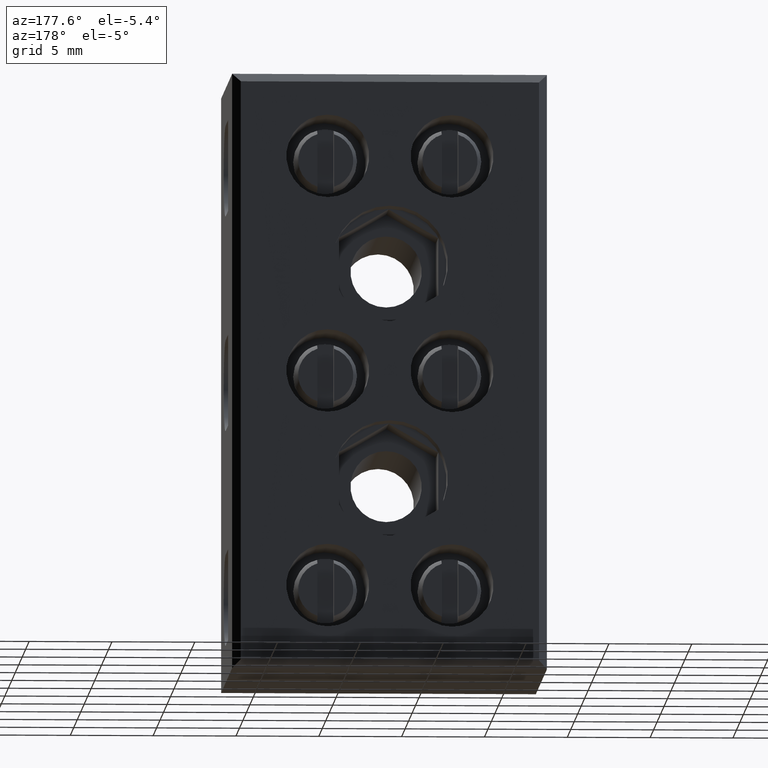
[diagram: clean part render]
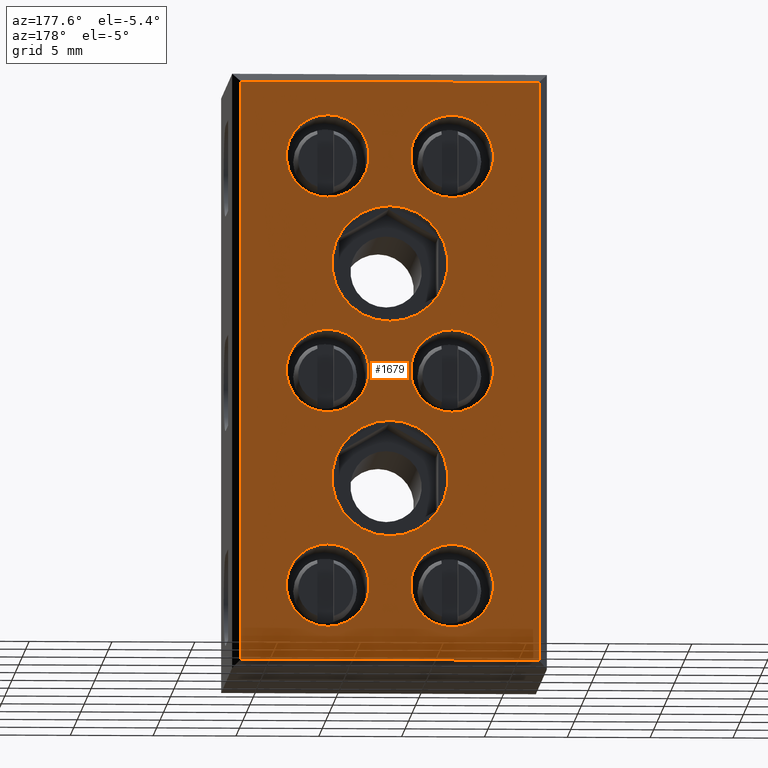
[diagram: same view with one face highlighted and labeled with its STEP entity id]
A machine part, auxiliary view. The second image highlights one B-rep face of the part: STEP entity #1679.
In plain terms, the highlighted planar face has unit normal (0, 1, 0).
Its self-contained STEP definition (entity closure, byte-faithful):
#289 = DIRECTION ( 'NONE',  ( 0.0000000000000000000, 0.0000000000000000000, 1.000000000000000000 ) ) ;
#307 = DIRECTION ( 'NONE',  ( 0.0000000000000000000, 0.0000000000000000000, 1.000000000000000000 ) ) ;
#311 = DIRECTION ( 'NONE',  ( -0.0000000000000000000, -1.000000000000000000, -0.0000000000000000000 ) ) ;
#327 = CARTESIAN_POINT ( 'NONE',  ( 6491.007784387872600, 17.00000000000000000, -18.00342649165530800 ) ) ;
#328 = CARTESIAN_POINT ( 'NONE',  ( 6487.257784387872600, 17.00000000000000000, -11.50342649165530100 ) ) ;
#329 = DIRECTION ( 'NONE',  ( -0.0000000000000000000, -1.000000000000000000, -0.0000000000000000000 ) ) ;
#340 = CARTESIAN_POINT ( 'NONE',  ( 6496.257784387882600, 16.99999999999989000, -36.25342650685088600 ) ) ;
#345 = LINE ( 'NONE', #340, #5625 ) ;
#365 = DIRECTION ( 'NONE',  ( -2.960884390070937000E-013, -2.960884390073395200E-013, 1.000000000000000000 ) ) ;
#379 = CARTESIAN_POINT ( 'NONE',  ( 6491.007784387872600, 17.00000000000000000, -5.003426491655305100 ) ) ;
#387 = DIRECTION ( 'NONE',  ( -0.0000000000000000000, -0.0000000000000000000, -1.000000000000000000 ) ) ;
#394 = DIRECTION ( 'NONE',  ( 0.0000000000000000000, 0.0000000000000000000, 1.000000000000000000 ) ) ;
#395 = DIRECTION ( 'NONE',  ( 0.0000000000000000000, 0.0000000000000000000, 1.000000000000000000 ) ) ;
#401 = DIRECTION ( 'NONE',  ( -0.0000000000000000000, -1.000000000000000000, -0.0000000000000000000 ) ) ;
#404 = CARTESIAN_POINT ( 'NONE',  ( 6483.507784387872600, 17.00000000000000000, -5.003426491655305100 ) ) ;
#407 = DIRECTION ( 'NONE',  ( -0.0000000000000000000, -1.000000000000000000, -0.0000000000000000000 ) ) ;
#408 = CARTESIAN_POINT ( 'NONE',  ( 6483.507784387872600, 17.00000000000000000, -18.00342649165530800 ) ) ;
#412 = DIRECTION ( 'NONE',  ( -0.0000000000000000000, -1.000000000000000000, -0.0000000000000000000 ) ) ;
#413 = LINE ( 'NONE', #415, #5601 ) ;
#414 = DIRECTION ( 'NONE',  ( 0.0000000000000000000, 0.0000000000000000000, 1.000000000000000000 ) ) ;
#415 = CARTESIAN_POINT ( 'NONE',  ( 6478.257784387862600, 17.00000000000000000, -36.25342650685148300 ) ) ;
#423 = DIRECTION ( 'NONE',  ( 0.0000000000000000000, 0.0000000000000000000, 1.000000000000000000 ) ) ;
#429 = DIRECTION ( 'NONE',  ( -0.0000000000000000000, -1.000000000000000000, -0.0000000000000000000 ) ) ;
#431 = DIRECTION ( 'NONE',  ( 0.0000000000000000000, 0.0000000000000000000, 1.000000000000000000 ) ) ;
#434 = DIRECTION ( 'NONE',  ( -0.0000000000000000000, -1.000000000000000000, -0.0000000000000000000 ) ) ;
#435 = LINE ( 'NONE', #456, #5641 ) ;
#436 = DIRECTION ( 'NONE',  ( 1.000000000000000000, -0.0000000000000000000, 0.0000000000000000000 ) ) ;
#439 = CARTESIAN_POINT ( 'NONE',  ( 6495.254189631172300, 17.00000000000000000, -0.5034264916452535500 ) ) ;
#440 = CARTESIAN_POINT ( 'NONE',  ( 6487.257784387872600, 17.00000000000000000, -24.50342649165530100 ) ) ;
#441 = CARTESIAN_POINT ( 'NONE',  ( 6483.507784387872600, 17.00000000000000000, -31.00342649165530100 ) ) ;
#442 = DIRECTION ( 'NONE',  ( 0.0000000000000000000, 0.0000000000000000000, 1.000000000000000000 ) ) ;
#443 = CARTESIAN_POINT ( 'NONE',  ( 6491.007784387872600, 17.00000000000000000, -31.00342649165530100 ) ) ;
#446 = LINE ( 'NONE', #439, #5631 ) ;
#453 = DIRECTION ( 'NONE',  ( -1.000000000000000000, -0.0000000000000000000, -0.0000000000000000000 ) ) ;
#455 = DIRECTION ( 'NONE',  ( -0.0000000000000000000, -1.000000000000000000, -0.0000000000000000000 ) ) ;
#456 = CARTESIAN_POINT ( 'NONE',  ( 6495.254189631172300, 17.00000000000000000, -35.50342649166538000 ) ) ;
#973 = EDGE_CURVE ( 'NONE', #6470, #6491, #5949, .T. ) ;
#974 = EDGE_CURVE ( 'NONE', #6516, #6481, #5913, .T. ) ;
#978 = EDGE_CURVE ( 'NONE', #6482, #6513, #5933, .T. ) ;
#983 = EDGE_CURVE ( 'NONE', #6439, #6487, #5954, .T. ) ;
#995 = EDGE_CURVE ( 'NONE', #6486, #6485, #5921, .T. ) ;
#1025 = EDGE_CURVE ( 'NONE', #6528, #6563, #5983, .T. ) ;
#1035 = EDGE_CURVE ( 'NONE', #6548, #6546, #6036, .T. ) ;
#1039 = EDGE_CURVE ( 'NONE', #6472, #6473, #6027, .T. ) ;
#1263 = EDGE_CURVE ( 'NONE', #6473, #6472, #5595, .T. ) ;
#1266 = EDGE_CURVE ( 'NONE', #6485, #6486, #5564, .T. ) ;
#1282 = EDGE_CURVE ( 'NONE', #6638, #6687, #345, .T. ) ;
#1286 = EDGE_CURVE ( 'NONE', #6546, #6548, #5650, .T. ) ;
#1289 = EDGE_CURVE ( 'NONE', #6563, #6528, #5606, .T. ) ;
#1291 = EDGE_CURVE ( 'NONE', #6513, #6482, #5628, .T. ) ;
#1293 = EDGE_CURVE ( 'NONE', #6658, #6640, #413, .T. ) ;
#1301 = EDGE_CURVE ( 'NONE', #6487, #6439, #5645, .T. ) ;
#1306 = EDGE_CURVE ( 'NONE', #6687, #6658, #446, .T. ) ;
#1307 = EDGE_CURVE ( 'NONE', #6481, #6516, #5656, .T. ) ;
#1310 = EDGE_CURVE ( 'NONE', #6491, #6470, #5663, .T. ) ;
#1313 = EDGE_CURVE ( 'NONE', #6640, #6638, #435, .T. ) ;
#1679 = ADVANCED_FACE ( 'NONE', ( #3662, #3656, #3626, #3657, #3633, #3646, #3621, #3650, #3664 ), #3647, .T. ) ;
#2552 = EDGE_LOOP ( 'NONE', ( #2910, #2881 ) ) ;
#2564 = EDGE_LOOP ( 'NONE', ( #2901, #2870 ) ) ;
#2576 = EDGE_LOOP ( 'NONE', ( #2919, #2828 ) ) ;
#2602 = EDGE_LOOP ( 'NONE', ( #2924, #2836 ) ) ;
#2609 = EDGE_LOOP ( 'NONE', ( #2898, #2888 ) ) ;
#2637 = EDGE_LOOP ( 'NONE', ( #2863, #2904, #2880, #2879 ) ) ;
#2651 = EDGE_LOOP ( 'NONE', ( #2896, #2893 ) ) ;
#2654 = EDGE_LOOP ( 'NONE', ( #2916, #2906 ) ) ;
#2660 = EDGE_LOOP ( 'NONE', ( #2912, #2890 ) ) ;
#2828 = ORIENTED_EDGE ( 'NONE', *, *, #1301, .T. ) ;
#2836 = ORIENTED_EDGE ( 'NONE', *, *, #1307, .T. ) ;
#2863 = ORIENTED_EDGE ( 'NONE', *, *, #1282, .F. ) ;
#2870 = ORIENTED_EDGE ( 'NONE', *, *, #1310, .T. ) ;
#2879 = ORIENTED_EDGE ( 'NONE', *, *, #1306, .F. ) ;
#2880 = ORIENTED_EDGE ( 'NONE', *, *, #1293, .F. ) ;
#2881 = ORIENTED_EDGE ( 'NONE', *, *, #1286, .T. ) ;
#2888 = ORIENTED_EDGE ( 'NONE', *, *, #1266, .T. ) ;
#2890 = ORIENTED_EDGE ( 'NONE', *, *, #1263, .T. ) ;
#2893 = ORIENTED_EDGE ( 'NONE', *, *, #1289, .T. ) ;
#2896 = ORIENTED_EDGE ( 'NONE', *, *, #1025, .T. ) ;
#2898 = ORIENTED_EDGE ( 'NONE', *, *, #995, .T. ) ;
#2901 = ORIENTED_EDGE ( 'NONE', *, *, #973, .T. ) ;
#2904 = ORIENTED_EDGE ( 'NONE', *, *, #1313, .F. ) ;
#2906 = ORIENTED_EDGE ( 'NONE', *, *, #1291, .T. ) ;
#2910 = ORIENTED_EDGE ( 'NONE', *, *, #1035, .T. ) ;
#2912 = ORIENTED_EDGE ( 'NONE', *, *, #1039, .T. ) ;
#2916 = ORIENTED_EDGE ( 'NONE', *, *, #978, .T. ) ;
#2919 = ORIENTED_EDGE ( 'NONE', *, *, #983, .T. ) ;
#2924 = ORIENTED_EDGE ( 'NONE', *, *, #974, .T. ) ;
#3621 = FACE_BOUND ( 'NONE', #2609, .T. ) ;
#3626 = FACE_BOUND ( 'NONE', #2654, .T. ) ;
#3633 = FACE_BOUND ( 'NONE', #2651, .T. ) ;
#3646 = FACE_BOUND ( 'NONE', #2552, .T. ) ;
#3647 = PLANE ( 'NONE',  #4232 ) ;
#3650 = FACE_BOUND ( 'NONE', #2564, .T. ) ;
#3656 = FACE_BOUND ( 'NONE', #2576, .T. ) ;
#3657 = FACE_BOUND ( 'NONE', #2660, .T. ) ;
#3659 = DIRECTION ( 'NONE',  ( 0.0000000000000000000, 1.000000000000000000, 0.0000000000000000000 ) ) ;
#3662 = FACE_BOUND ( 'NONE', #2602, .T. ) ;
#3664 = FACE_OUTER_BOUND ( 'NONE', #2637, .T. ) ;
#3666 = DIRECTION ( 'NONE',  ( 0.0000000000000000000, -0.0000000000000000000, 1.000000000000000000 ) ) ;
#3675 = CARTESIAN_POINT ( 'NONE',  ( 6495.254189631172300, 17.00000000000000000, -36.25342650685148300 ) ) ;
#4232 = AXIS2_PLACEMENT_3D ( 'NONE', #3675, #3659, #3666 ) ;
#4707 = DIRECTION ( 'NONE',  ( 0.0000000000000000000, 0.0000000000000000000, 1.000000000000000000 ) ) ;
#4717 = CARTESIAN_POINT ( 'NONE',  ( 6487.257784387872600, 17.00000000000000000, -24.50342649165530100 ) ) ;
#4730 = DIRECTION ( 'NONE',  ( -0.0000000000000000000, -1.000000000000000000, -0.0000000000000000000 ) ) ;
#4734 = CARTESIAN_POINT ( 'NONE',  ( 6483.507784387872600, 17.00000000000000000, -31.00342649165530100 ) ) ;
#4735 = DIRECTION ( 'NONE',  ( -0.0000000000000000000, -1.000000000000000000, -0.0000000000000000000 ) ) ;
#4740 = DIRECTION ( 'NONE',  ( 0.0000000000000000000, 0.0000000000000000000, 1.000000000000000000 ) ) ;
#4744 = CARTESIAN_POINT ( 'NONE',  ( 6491.007784387872600, 17.00000000000000000, -31.00342649165530100 ) ) ;
#4764 = CARTESIAN_POINT ( 'NONE',  ( 6483.507784387872600, 17.00000000000000000, -18.00342649165530800 ) ) ;
#4765 = DIRECTION ( 'NONE',  ( 0.0000000000000000000, 0.0000000000000000000, 1.000000000000000000 ) ) ;
#4769 = DIRECTION ( 'NONE',  ( -0.0000000000000000000, -1.000000000000000000, -0.0000000000000000000 ) ) ;
#4775 = DIRECTION ( 'NONE',  ( 0.0000000000000000000, 0.0000000000000000000, 1.000000000000000000 ) ) ;
#4777 = DIRECTION ( 'NONE',  ( -0.0000000000000000000, -1.000000000000000000, -0.0000000000000000000 ) ) ;
#4791 = DIRECTION ( 'NONE',  ( -0.0000000000000000000, -1.000000000000000000, -0.0000000000000000000 ) ) ;
#4799 = CARTESIAN_POINT ( 'NONE',  ( 6487.257784387872600, 17.00000000000000000, -11.50342649165530100 ) ) ;
#4809 = DIRECTION ( 'NONE',  ( 0.0000000000000000000, 0.0000000000000000000, 1.000000000000000000 ) ) ;
#4911 = DIRECTION ( 'NONE',  ( 0.0000000000000000000, 0.0000000000000000000, 1.000000000000000000 ) ) ;
#4915 = CARTESIAN_POINT ( 'NONE',  ( 6491.007784387872600, 17.00000000000000000, -5.003426491655305100 ) ) ;
#4920 = DIRECTION ( 'NONE',  ( -0.0000000000000000000, -1.000000000000000000, -0.0000000000000000000 ) ) ;
#4922 = DIRECTION ( 'NONE',  ( 0.0000000000000000000, 0.0000000000000000000, 1.000000000000000000 ) ) ;
#4926 = DIRECTION ( 'NONE',  ( -0.0000000000000000000, -1.000000000000000000, -0.0000000000000000000 ) ) ;
#4930 = CARTESIAN_POINT ( 'NONE',  ( 6483.507784387872600, 17.00000000000000000, -5.003426491655305100 ) ) ;
#4950 = DIRECTION ( 'NONE',  ( -0.0000000000000000000, -1.000000000000000000, -0.0000000000000000000 ) ) ;
#4958 = CARTESIAN_POINT ( 'NONE',  ( 6491.007784387872600, 17.00000000000000000, -18.00342649165530800 ) ) ;
#4970 = DIRECTION ( 'NONE',  ( 0.0000000000000000000, 0.0000000000000000000, 1.000000000000000000 ) ) ;
#5564 = CIRCLE ( 'NONE', #5577, 3.500000000000166100 ) ;
#5577 = AXIS2_PLACEMENT_3D ( 'NONE', #328, #329, #289 ) ;
#5595 = CIRCLE ( 'NONE', #5597, 2.500000000000161600 ) ;
#5597 = AXIS2_PLACEMENT_3D ( 'NONE', #327, #311, #307 ) ;
#5601 = VECTOR ( 'NONE', #387, 1000.000000000000000 ) ;
#5606 = CIRCLE ( 'NONE', #5659, 2.500000000000161200 ) ;
#5625 = VECTOR ( 'NONE', #365, 1000.000000000000000 ) ;
#5628 = CIRCLE ( 'NONE', #5655, 2.500000000000161600 ) ;
#5631 = VECTOR ( 'NONE', #453, 1000.000000000000000 ) ;
#5632 = AXIS2_PLACEMENT_3D ( 'NONE', #379, #407, #414 ) ;
#5634 = AXIS2_PLACEMENT_3D ( 'NONE', #443, #429, #442 ) ;
#5636 = AXIS2_PLACEMENT_3D ( 'NONE', #440, #455, #431 ) ;
#5639 = AXIS2_PLACEMENT_3D ( 'NONE', #441, #434, #423 ) ;
#5641 = VECTOR ( 'NONE', #436, 1000.000000000000000 ) ;
#5645 = CIRCLE ( 'NONE', #5634, 2.500000000000161600 ) ;
#5650 = CIRCLE ( 'NONE', #5632, 2.500000000000161200 ) ;
#5655 = AXIS2_PLACEMENT_3D ( 'NONE', #408, #401, #395 ) ;
#5656 = CIRCLE ( 'NONE', #5639, 2.500000000000161600 ) ;
#5659 = AXIS2_PLACEMENT_3D ( 'NONE', #404, #412, #394 ) ;
#5663 = CIRCLE ( 'NONE', #5636, 3.500000000000166100 ) ;
#5913 = CIRCLE ( 'NONE', #5953, 2.500000000000161600 ) ;
#5915 = AXIS2_PLACEMENT_3D ( 'NONE', #4717, #4730, #4707 ) ;
#5920 = AXIS2_PLACEMENT_3D ( 'NONE', #4764, #4769, #4775 ) ;
#5921 = CIRCLE ( 'NONE', #5958, 3.500000000000166100 ) ;
#5922 = AXIS2_PLACEMENT_3D ( 'NONE', #4744, #4777, #4765 ) ;
#5933 = CIRCLE ( 'NONE', #5920, 2.500000000000161600 ) ;
#5949 = CIRCLE ( 'NONE', #5915, 3.500000000000166100 ) ;
#5953 = AXIS2_PLACEMENT_3D ( 'NONE', #4734, #4735, #4740 ) ;
#5954 = CIRCLE ( 'NONE', #5922, 2.500000000000161600 ) ;
#5958 = AXIS2_PLACEMENT_3D ( 'NONE', #4799, #4791, #4809 ) ;
#5983 = CIRCLE ( 'NONE', #5984, 2.500000000000161200 ) ;
#5984 = AXIS2_PLACEMENT_3D ( 'NONE', #4930, #4926, #4911 ) ;
#6016 = AXIS2_PLACEMENT_3D ( 'NONE', #4958, #4950, #4970 ) ;
#6025 = AXIS2_PLACEMENT_3D ( 'NONE', #4915, #4920, #4922 ) ;
#6027 = CIRCLE ( 'NONE', #6016, 2.500000000000161600 ) ;
#6036 = CIRCLE ( 'NONE', #6025, 2.500000000000161200 ) ;
#6439 = VERTEX_POINT ( 'NONE', #8372 ) ;
#6470 = VERTEX_POINT ( 'NONE', #7434 ) ;
#6472 = VERTEX_POINT ( 'NONE', #7415 ) ;
#6473 = VERTEX_POINT ( 'NONE', #7454 ) ;
#6481 = VERTEX_POINT ( 'NONE', #7427 ) ;
#6482 = VERTEX_POINT ( 'NONE', #7412 ) ;
#6485 = VERTEX_POINT ( 'NONE', #7439 ) ;
#6486 = VERTEX_POINT ( 'NONE', #7419 ) ;
#6487 = VERTEX_POINT ( 'NONE', #7431 ) ;
#6491 = VERTEX_POINT ( 'NONE', #7424 ) ;
#6513 = VERTEX_POINT ( 'NONE', #7596 ) ;
#6516 = VERTEX_POINT ( 'NONE', #7720 ) ;
#6528 = VERTEX_POINT ( 'NONE', #8142 ) ;
#6546 = VERTEX_POINT ( 'NONE', #7193 ) ;
#6548 = VERTEX_POINT ( 'NONE', #7185 ) ;
#6563 = VERTEX_POINT ( 'NONE', #7201 ) ;
#6638 = VERTEX_POINT ( 'NONE', #7299 ) ;
#6640 = VERTEX_POINT ( 'NONE', #7305 ) ;
#6658 = VERTEX_POINT ( 'NONE', #7315 ) ;
#6687 = VERTEX_POINT ( 'NONE', #7342 ) ;
#7185 = CARTESIAN_POINT ( 'NONE',  ( 6491.007784387872600, 17.00000000000000000, -2.503426491655143900 ) ) ;
#7193 = CARTESIAN_POINT ( 'NONE',  ( 6491.007784387872600, 17.00000000000000000, -7.503426491655466700 ) ) ;
#7201 = CARTESIAN_POINT ( 'NONE',  ( 6483.507784387872600, 17.00000000000000000, -7.503426491655466700 ) ) ;
#7299 = CARTESIAN_POINT ( 'NONE',  ( 6496.257784387877100, 16.99999999999986100, -35.50342649166532300 ) ) ;
#7305 = CARTESIAN_POINT ( 'NONE',  ( 6478.257784387862600, 17.00000000000000000, -35.50342649166538000 ) ) ;
#7315 = CARTESIAN_POINT ( 'NONE',  ( 6478.257784387862600, 17.00000000000000000, -0.5034264916452535500 ) ) ;
#7342 = CARTESIAN_POINT ( 'NONE',  ( 6496.257784387864400, 16.99999999999735000, -0.5034264916427562100 ) ) ;
#7412 = CARTESIAN_POINT ( 'NONE',  ( 6483.507784387872600, 17.00000000000000000, -15.50342649165514400 ) ) ;
#7415 = CARTESIAN_POINT ( 'NONE',  ( 6491.007784387872600, 17.00000000000000000, -15.50342649165514400 ) ) ;
#7419 = CARTESIAN_POINT ( 'NONE',  ( 6487.257784387872600, 17.00000000000000000, -8.003426491655133600 ) ) ;
#7424 = CARTESIAN_POINT ( 'NONE',  ( 6487.257784387872600, 17.00000000000000000, -28.00342649165546800 ) ) ;
#7427 = CARTESIAN_POINT ( 'NONE',  ( 6483.507784387872600, 17.00000000000000000, -33.50342649165546000 ) ) ;
#7431 = CARTESIAN_POINT ( 'NONE',  ( 6491.007784387872600, 17.00000000000000000, -33.50342649165546000 ) ) ;
#7434 = CARTESIAN_POINT ( 'NONE',  ( 6487.257784387872600, 17.00000000000000000, -21.00342649165513400 ) ) ;
#7439 = CARTESIAN_POINT ( 'NONE',  ( 6487.257784387872600, 17.00000000000000000, -15.00342649165546600 ) ) ;
#7454 = CARTESIAN_POINT ( 'NONE',  ( 6491.007784387872600, 17.00000000000000000, -20.50342649165546800 ) ) ;
#7596 = CARTESIAN_POINT ( 'NONE',  ( 6483.507784387872600, 17.00000000000000000, -20.50342649165546800 ) ) ;
#7720 = CARTESIAN_POINT ( 'NONE',  ( 6483.507784387872600, 17.00000000000000000, -28.50342649165513700 ) ) ;
#8142 = CARTESIAN_POINT ( 'NONE',  ( 6483.507784387872600, 17.00000000000000000, -2.503426491655143900 ) ) ;
#8372 = CARTESIAN_POINT ( 'NONE',  ( 6491.007784387872600, 17.00000000000000000, -28.50342649165513700 ) ) ;